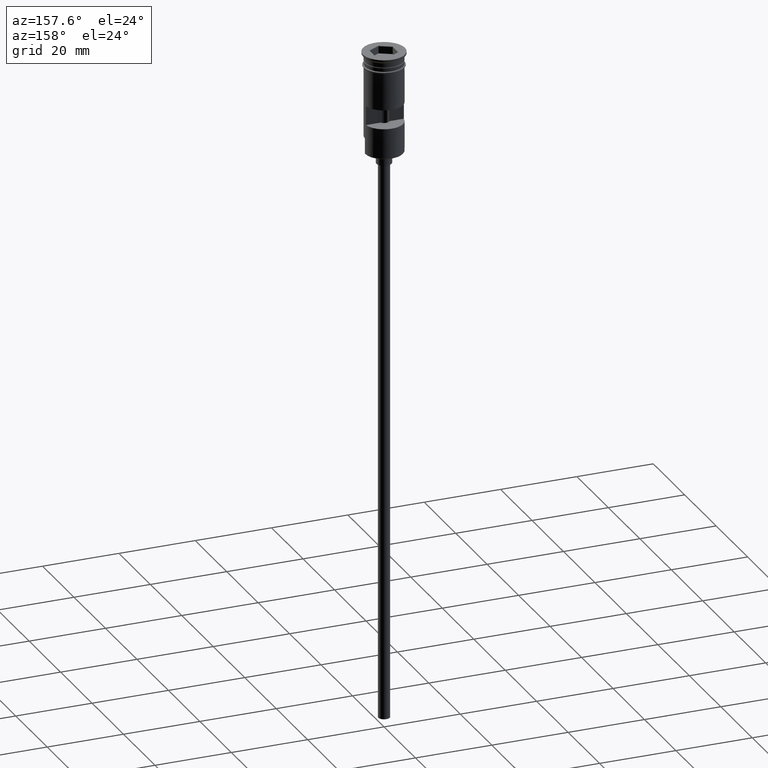
[diagram: clean part render]
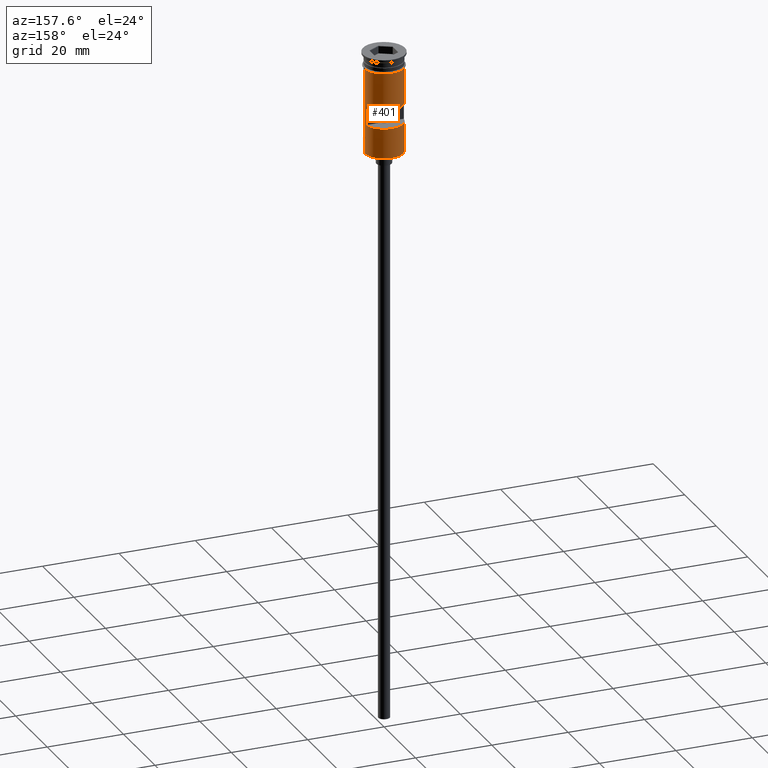
[diagram: same view with one face highlighted and labeled with its STEP entity id]
A machine part, auxiliary view. The second image highlights one B-rep face of the part: STEP entity #401.
In plain terms, the highlighted cylindrical surface (edge-blend (fillet) strip) has radius 5 mm, axis along (-0, -0, 1).
Its self-contained STEP definition (entity closure, byte-faithful):
#23 = VECTOR ( 'NONE', #1090, 1000.000000000000000 ) ;
#68 = CARTESIAN_POINT ( 'NONE',  ( 4.999999999999993783, 6.123233995736758394E-16, -26.30000000000000071 ) ) ;
#90 = ORIENTED_EDGE ( 'NONE', *, *, #1365, .T. ) ;
#93 = FACE_BOUND ( 'NONE', #983, .T. ) ;
#99 = ORIENTED_EDGE ( 'NONE', *, *, #855, .F. ) ;
#103 = CIRCLE ( 'NONE', #305, 4.999999999999996447 ) ;
#112 = CARTESIAN_POINT ( 'NONE',  ( 4.963869458396339418, 0.5999999999999998668, -13.49999999999999822 ) ) ;
#124 = AXIS2_PLACEMENT_3D ( 'NONE', #754, #414, #517 ) ;
#138 = DIRECTION ( 'NONE',  ( -1.000000000000000000, 0.000000000000000000, 0.000000000000000000 ) ) ;
#139 = ORIENTED_EDGE ( 'NONE', *, *, #590, .F. ) ;
#195 = CARTESIAN_POINT ( 'NONE',  ( 4.999999999999996447, 6.123233995736761352E-16, -22.30000000000001137 ) ) ;
#212 = LINE ( 'NONE', #344, #356 ) ;
#305 = AXIS2_PLACEMENT_3D ( 'NONE', #379, #521, #138 ) ;
#311 = FACE_OUTER_BOUND ( 'NONE', #468, .T. ) ;
#315 = DIRECTION ( 'NONE',  ( 0.000000000000000000, -1.000000000000000000, 3.469446951953616654E-16 ) ) ;
#340 = ORIENTED_EDGE ( 'NONE', *, *, #1006, .F. ) ;
#344 = CARTESIAN_POINT ( 'NONE',  ( -4.999999999999996447, 6.123233995736762338E-16, 0.000000000000000000 ) ) ;
#352 = VECTOR ( 'NONE', #777, 1000.000000000000000 ) ;
#356 = VECTOR ( 'NONE', #1589, 1000.000000000000000 ) ;
#379 = CARTESIAN_POINT ( 'NONE',  ( 0.000000000000000000, 0.000000000000000000, -26.30000000000000071 ) ) ;
#399 = VERTEX_POINT ( 'NONE', #1036 ) ;
#401 = ADVANCED_FACE ( 'NONE', ( #93, #311 ), #673, .T. ) ;
#409 = VECTOR ( 'NONE', #1414, 1000.000000000000000 ) ;
#410 = VECTOR ( 'NONE', #501, 1000.000000000000000 ) ;
#414 = DIRECTION ( 'NONE',  ( -0.000000000000000000, -0.000000000000000000, 1.000000000000000000 ) ) ;
#428 = CARTESIAN_POINT ( 'NONE',  ( 0.000000000000000000, 0.000000000000000000, -13.49999999999999822 ) ) ;
#439 = DIRECTION ( 'NONE',  ( -0.000000000000000000, -0.000000000000000000, 1.000000000000000000 ) ) ;
#453 = EDGE_CURVE ( 'NONE', #1553, #1483, #596, .T. ) ;
#468 = EDGE_LOOP ( 'NONE', ( #1091, #90, #1454, #1486, #490, #1544 ) ) ;
#490 = ORIENTED_EDGE ( 'NONE', *, *, #733, .F. ) ;
#498 = CARTESIAN_POINT ( 'NONE',  ( 0.000000000000000000, 0.000000000000000000, -18.50000000000000355 ) ) ;
#501 = DIRECTION ( 'NONE',  ( -0.000000000000000000, -0.000000000000000000, 1.000000000000000000 ) ) ;
#510 = VERTEX_POINT ( 'NONE', #112 ) ;
#517 = DIRECTION ( 'NONE',  ( 1.000000000000000000, 0.000000000000000000, 0.000000000000000000 ) ) ;
#521 = DIRECTION ( 'NONE',  ( 0.000000000000000000, 0.000000000000000000, 1.000000000000000000 ) ) ;
#590 = EDGE_CURVE ( 'NONE', #850, #399, #1022, .T. ) ;
#593 = ORIENTED_EDGE ( 'NONE', *, *, #714, .F. ) ;
#594 = CARTESIAN_POINT ( 'NONE',  ( 4.963869458396339418, 0.5999999999999998668, -18.50000000000000355 ) ) ;
#596 = LINE ( 'NONE', #1493, #994 ) ;
#598 = EDGE_CURVE ( 'NONE', #1483, #995, #1250, .T. ) ;
#673 = CYLINDRICAL_SURFACE ( 'NONE', #1494, 4.999999999999996447 ) ;
#710 = CARTESIAN_POINT ( 'NONE',  ( -4.999999999999993783, 0.000000000000000000, -26.30000000000000071 ) ) ;
#714 = EDGE_CURVE ( 'NONE', #399, #510, #1335, .T. ) ;
#726 = CARTESIAN_POINT ( 'NONE',  ( -4.963869458396339418, 0.5999999999999998668, -18.50000000000000355 ) ) ;
#733 = EDGE_CURVE ( 'NONE', #770, #1553, #1186, .T. ) ;
#754 = CARTESIAN_POINT ( 'NONE',  ( 0.000000000000000000, 0.000000000000000000, -3.799999999999998934 ) ) ;
#770 = VERTEX_POINT ( 'NONE', #68 ) ;
#777 = DIRECTION ( 'NONE',  ( -0.000000000000000000, -0.000000000000000000, 1.000000000000000000 ) ) ;
#850 = VERTEX_POINT ( 'NONE', #726 ) ;
#855 = EDGE_CURVE ( 'NONE', #510, #931, #958, .T. ) ;
#882 = DIRECTION ( 'NONE',  ( -1.000000000000000000, 0.000000000000000000, 0.000000000000000000 ) ) ;
#923 = CARTESIAN_POINT ( 'NONE',  ( 4.999999999999993783, 6.123233995736758394E-16, -26.50000000000000000 ) ) ;
#926 = DIRECTION ( 'NONE',  ( 1.000000000000000000, 0.000000000000000000, 0.000000000000000000 ) ) ;
#931 = VERTEX_POINT ( 'NONE', #594 ) ;
#948 = VERTEX_POINT ( 'NONE', #710 ) ;
#958 = LINE ( 'NONE', #1323, #23 ) ;
#977 = DIRECTION ( 'NONE',  ( -0.000000000000000000, -0.000000000000000000, 1.000000000000000000 ) ) ;
#983 = EDGE_LOOP ( 'NONE', ( #99, #593, #139, #340 ) ) ;
#985 = EDGE_CURVE ( 'NONE', #770, #948, #103, .T. ) ;
#989 = CARTESIAN_POINT ( 'NONE',  ( -4.999999999999999112, 6.123233995736765296E-16, -3.799999999999998934 ) ) ;
#994 = VECTOR ( 'NONE', #977, 1000.000000000000000 ) ;
#995 = VERTEX_POINT ( 'NONE', #989 ) ;
#1006 = EDGE_CURVE ( 'NONE', #931, #850, #1413, .T. ) ;
#1007 = CARTESIAN_POINT ( 'NONE',  ( -4.999999999999993783, 0.000000000000000000, -22.30000000000001137 ) ) ;
#1022 = LINE ( 'NONE', #1268, #352 ) ;
#1036 = CARTESIAN_POINT ( 'NONE',  ( -4.963869458396339418, 0.5999999999999998668, -13.49999999999999822 ) ) ;
#1065 = VERTEX_POINT ( 'NONE', #1007 ) ;
#1090 = DIRECTION ( 'NONE',  ( 0.000000000000000000, 0.000000000000000000, -1.000000000000000000 ) ) ;
#1091 = ORIENTED_EDGE ( 'NONE', *, *, #1410, .T. ) ;
#1114 = CARTESIAN_POINT ( 'NONE',  ( 4.999999999999999112, 0.000000000000000000, -3.799999999999998934 ) ) ;
#1116 = DIRECTION ( 'NONE',  ( 0.000000000000000000, 0.000000000000000000, 1.000000000000000000 ) ) ;
#1122 = AXIS2_PLACEMENT_3D ( 'NONE', #498, #1116, #882 ) ;
#1164 = CARTESIAN_POINT ( 'NONE',  ( 0.000000000000000000, 0.000000000000000000, 0.000000000000000000 ) ) ;
#1186 = LINE ( 'NONE', #923, #409 ) ;
#1250 = CIRCLE ( 'NONE', #124, 4.999999999999999112 ) ;
#1268 = CARTESIAN_POINT ( 'NONE',  ( -4.963869458396339418, 0.5999999999999998668, 0.000000000000000000 ) ) ;
#1305 = DIRECTION ( 'NONE',  ( -0.000000000000000000, -3.942553354492746489E-16, -1.000000000000000000 ) ) ;
#1323 = CARTESIAN_POINT ( 'NONE',  ( 4.963869458396339418, 0.5999999999999998668, 0.000000000000000000 ) ) ;
#1335 = CIRCLE ( 'NONE', #1573, 4.999999999999996447 ) ;
#1365 = EDGE_CURVE ( 'NONE', #1065, #995, #212, .T. ) ;
#1385 = CARTESIAN_POINT ( 'NONE',  ( -4.999999999999993783, 0.000000000000000000, -26.50000000000000000 ) ) ;
#1410 = EDGE_CURVE ( 'NONE', #948, #1065, #1515, .T. ) ;
#1413 = CIRCLE ( 'NONE', #1122, 4.999999999999996447 ) ;
#1414 = DIRECTION ( 'NONE',  ( -0.000000000000000000, -0.000000000000000000, 1.000000000000000000 ) ) ;
#1454 = ORIENTED_EDGE ( 'NONE', *, *, #598, .F. ) ;
#1483 = VERTEX_POINT ( 'NONE', #1114 ) ;
#1486 = ORIENTED_EDGE ( 'NONE', *, *, #453, .F. ) ;
#1493 = CARTESIAN_POINT ( 'NONE',  ( 4.999999999999996447, 0.000000000000000000, 0.000000000000000000 ) ) ;
#1494 = AXIS2_PLACEMENT_3D ( 'NONE', #1164, #439, #926 ) ;
#1515 = LINE ( 'NONE', #1385, #410 ) ;
#1544 = ORIENTED_EDGE ( 'NONE', *, *, #985, .T. ) ;
#1553 = VERTEX_POINT ( 'NONE', #195 ) ;
#1573 = AXIS2_PLACEMENT_3D ( 'NONE', #428, #1305, #315 ) ;
#1589 = DIRECTION ( 'NONE',  ( -0.000000000000000000, -0.000000000000000000, 1.000000000000000000 ) ) ;